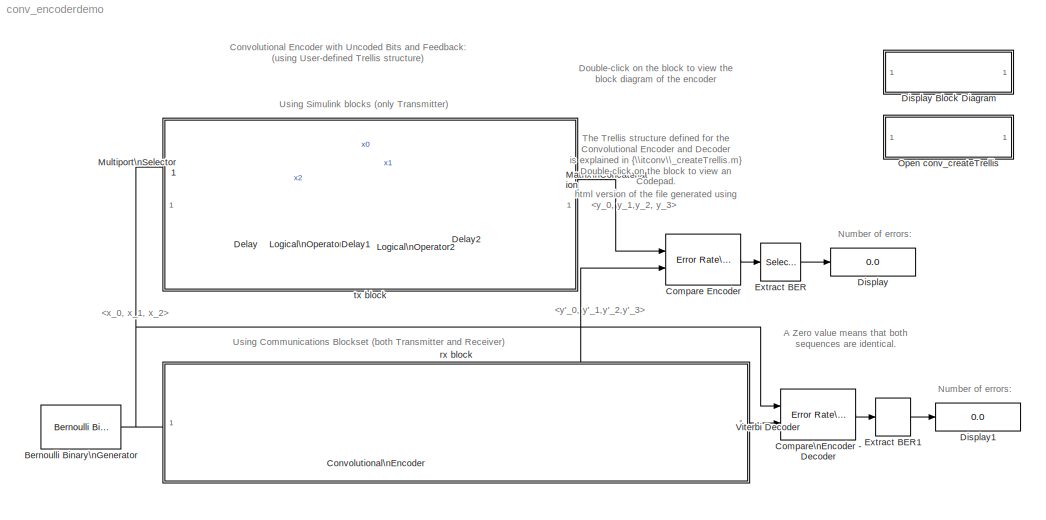
MODEL conv_encoderdemo
KIND model
CONFIG PreLoadFcn = %-- Initialize myTrellis structure\nmyTrellis.numInputSymbols = 8;\nmyTrellis.numOutputSymbols = 16;\nmyTrellis.numStates = 8;\n\nmyTrellis.nextStates = [0     1     2     3     0     1     2     3;\n                        6     7     4     5     6     7     4     5;\n                        1     0     3     2     1     0     3     2;\n                        7     6     5     4     7     6     ...<+834ch>
BLOCK [Reference] Bernoulli Binary\nGenerator  REF=commrandsrc2/Bernoulli Binary\nGenerator
  P = 0.5
  Ports = [0, 1]
  ShowPortLabels = on
  SourceBlock = commrandsrc2/Bernoulli Binary\nGenerator
  SourceType = Bernoulli Binary Generator
  Ts = 1/3
  frameBased = on
  orient = off
  sampPerFrame = 3
  seed = 61
BLOCK [Reference] Compare Encoder  REF=commsink2/Error Rate\nCalculation
  N = 0
  PMode = Port
  Ports = [2, 1]
  RsMode2 = off
  SourceBlock = commsink2/Error Rate\nCalculation
  SourceType = Error Rate Calculation
  WsName = ErrorVec
  cp_mode = Entire frame
  maxBits = 1e6
  numErr = 100
  st_delay = 0
  stop = off
  subframe = []
BLOCK [Reference] Compare\nEncoder - Decoder  REF=commsink2/Error Rate\nCalculation
  N = 34*3
  PMode = Port
  Ports = [2, 1]
  RsMode2 = off
  SourceBlock = commsink2/Error Rate\nCalculation
  SourceType = Error Rate Calculation
  WsName = ErrorVec
  cp_mode = Entire frame
  maxBits = 1e6
  numErr = 100
  st_delay = 0
  stop = off
  subframe = []
BLOCK [Reference] Convolutional\nEncoder  REF=commcnvcod2/Convolutional\nEncoder
  Ports = [1, 1]
  SourceBlock = commcnvcod2/Convolutional\nEncoder
  SourceType = Convolutional Encoder
  reset = None
  trellis = myTrellis % Stored in MATLAB Workspace
BLOCK [Reference] Delay  REF=dspsigops/Delay
  Ports = [1, 1]
  SourceBlock = dspsigops/Delay
  SourceType = Delay
  delay = 1
  dif_ic_for_ch = off
  dif_ic_for_dly = off
  dly_unit = Samples
  ic = 0
  ic_detail = off
  reset_popup = None
BLOCK [Reference] Delay1  REF=dspsigops/Delay
  Ports = [1, 1]
  SourceBlock = dspsigops/Delay
  SourceType = Delay
  delay = 1
  dif_ic_for_ch = off
  dif_ic_for_dly = off
  dly_unit = Samples
  ic = 0
  ic_detail = off
  reset_popup = None
BLOCK [Reference] Delay2  REF=dspsigops/Delay
  Ports = [1, 1]
  SourceBlock = dspsigops/Delay
  SourceType = Delay
  delay = 1
  dif_ic_for_ch = off
  dif_ic_for_dly = off
  dly_unit = Samples
  ic = 0
  ic_detail = off
  reset_popup = None
BLOCK [Display] Display
  Decimation = 1
  Ports = [1]
BLOCK [SubSystem] Display Block Diagram
  MaskDisplay = disp('Display\\nBlock Diagram')
  MaskIconFrame = on
  MaskIconOpaque = on
  MaskIconRotate = none
  MaskIconUnits = autoscale
  OpenFcn = w=which([matlabroot filesep 'toolbox' filesep 'commblks' filesep 'commblksdemos' filesep 'conv_blckdiagram.jpg']);\n                                                                                                                  \nif isempty(w)                                                                                                     \n    w = which('conv_blckdiagram.jpg');              ...<+1237ch>
  Ports = []
  TreatAsAtomicUnit = off
BLOCK [Display] Display1
  Decimation = 1
  Ports = [1]
BLOCK [Selector] Extract BER
  InputPortWidth = 3
  Ports = [1, 1]
BLOCK [Selector] Extract BER1
  InputPortWidth = 3
  Ports = [1, 1]
BLOCK [Logic] Logical\nOperator
  AllPortsSameDT = off
  Inputs = 3
  Operator = XOR
  Ports = [3, 1]
BLOCK [Logic] Logical\nOperator2
  AllPortsSameDT = off
  Operator = XOR
  Ports = [2, 1]
BLOCK [Reference] Matrix\nConcatenation  REF=simulink/Math\nOperations/Matrix\nConcatenation
  Ports = [4, 1]
  SourceBlock = simulink/Math\nOperations/Matrix\nConcatenation
  SourceType = Matrix Concatenation
  catMethod = Vertical
  numInports = 4
BLOCK [Reference] Multiport\nSelector1  REF=dspindex/Multiport\nSelector
  Ports = [1, 3]
  SourceBlock = dspindex/Multiport\nSelector
  SourceType = Multiport Selector
  idxCellArray = {1 2 3}
  idxErrMode = Clip Index
  rowsOrCols = Rows
BLOCK [SubSystem] Open conv_createTrellis
  MaskDisplay = disp('Info')
  MaskIconFrame = on
  MaskIconOpaque = on
  MaskIconRotate = none
  MaskIconUnits = autoscale
  OpenFcn = if exist([matlabroot filesep 'toolbox' filesep 'commblks' filesep 'commblksdemos' filesep 'html' filesep 'conv_createTrellis.html'])\n                                                                                                                                    \n    web([matlabroot filesep 'toolbox' filesep 'commblks' filesep 'commblksdemos' filesep 'html' filesep 'conv_createTrellis.html']);...<+541ch>
  Ports = []
  TreatAsAtomicUnit = off
BLOCK [Reference] Viterbi Decoder  REF=commcnvcod2/Viterbi Decoder
  Ports = [1, 1]
  SourceBlock = commcnvcod2/Viterbi Decoder
  SourceType = Viterbi Decoder
  dectype = Hard Decision
  nsdecb = 4
  opmode = Continuous
  reset = off
  tbdepth = 34
  trellis = myTrellis % Stored in MATLAB Workspace
BLOCK [SubSystem] rx block
  MaskDisplay = disp('')
  MaskIconFrame = on
  MaskIconOpaque = on
  MaskIconRotate = none
  MaskIconUnits = autoscale
  Ports = []
  TreatAsAtomicUnit = off
BLOCK [SubSystem] tx block
  MaskDisplay = disp('')
  MaskIconFrame = on
  MaskIconOpaque = on
  MaskIconRotate = none
  MaskIconUnits = autoscale
  Ports = []
  TreatAsAtomicUnit = off
ANNOTATION (root): A Zero value means that both\nsequences are identical.
ANNOTATION (root): Convolutional Encoder with Uncoded Bits and Feedback:\n(using User-defined Trellis structure)
ANNOTATION (root): Double-click on the block to view the\nblock diagram of the encoder
ANNOTATION (root): Number of errors:
ANNOTATION (root): The Trellis structure defined for the \nConvolutional Encoder and Decoder \nis explained in {<path> on the block to view an\nhtml version of the file generated using\nCodepad.
ANNOTATION (root): Using Communications Blockset (both Transmitter and Receiver)
ANNOTATION (root): Using Simulink blocks (only Transmitter)
ANNOTATION Display Block Diagram: This sub-system is empty.
ANNOTATION Open conv_createTrellis: This sub-system is empty.
NET Bernoulli Binary\nGenerator:1 -> Compare\nEncoder - Decoder:1, Convolutional\nEncoder:1, Multiport\nSelector1:1
LINE Compare Encoder:1 -> Extract BER:1
LINE Compare\nEncoder - Decoder:1 -> Extract BER1:1
NET Convolutional\nEncoder:1 -> Compare Encoder:2, Viterbi Decoder:1
LINE Delay1:1 -> Logical\nOperator2:2
NET Delay2:1 -> Delay:1, Logical\nOperator:3, Matrix\nConcatenation:4
LINE Delay:1 -> Logical\nOperator:2
LINE Extract BER1:1 -> Display1:1
LINE Extract BER:1 -> Display:1
LINE Logical\nOperator2:1 -> Delay2:1
LINE Logical\nOperator:1 -> Delay1:1
LINE Matrix\nConcatenation:1 -> Compare Encoder:1
LINE Multiport\nSelector1:1 -> Matrix\nConcatenation:1
NET Multiport\nSelector1:2 -> Logical\nOperator:1, Matrix\nConcatenation:2
NET Multiport\nSelector1:3 -> Logical\nOperator2:1, Matrix\nConcatenation:3
LINE Viterbi Decoder:1 -> Compare\nEncoder - Decoder:2
note: NET lines group one-source signal fan-out (src -> all destinations, sorted); 1:1 wires keep LINE
note: 1 file-system path scrubbed to <path> (not preserved elsewhere — flat text is the only slx artifact)
